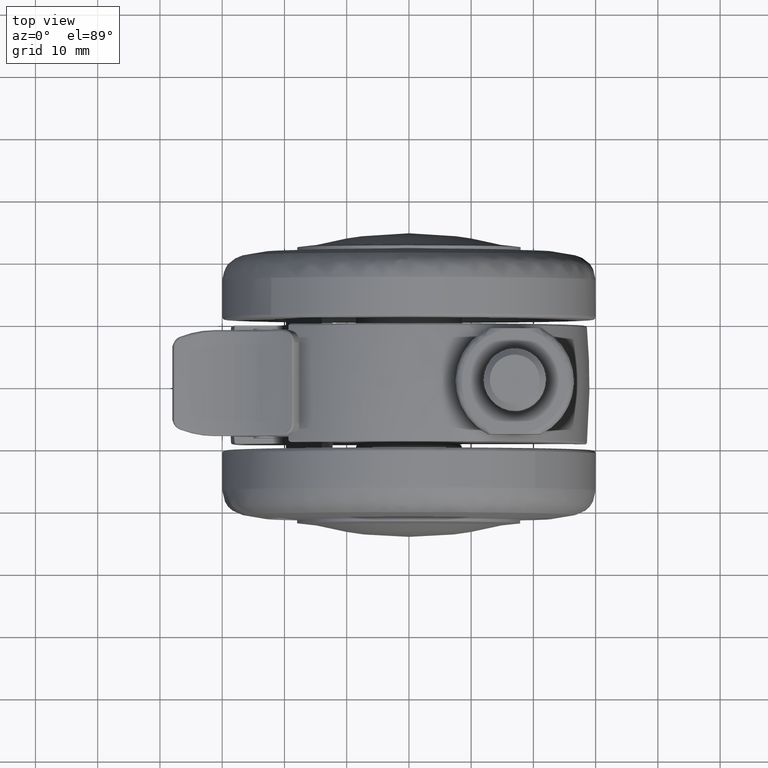
[diagram: clean part render]
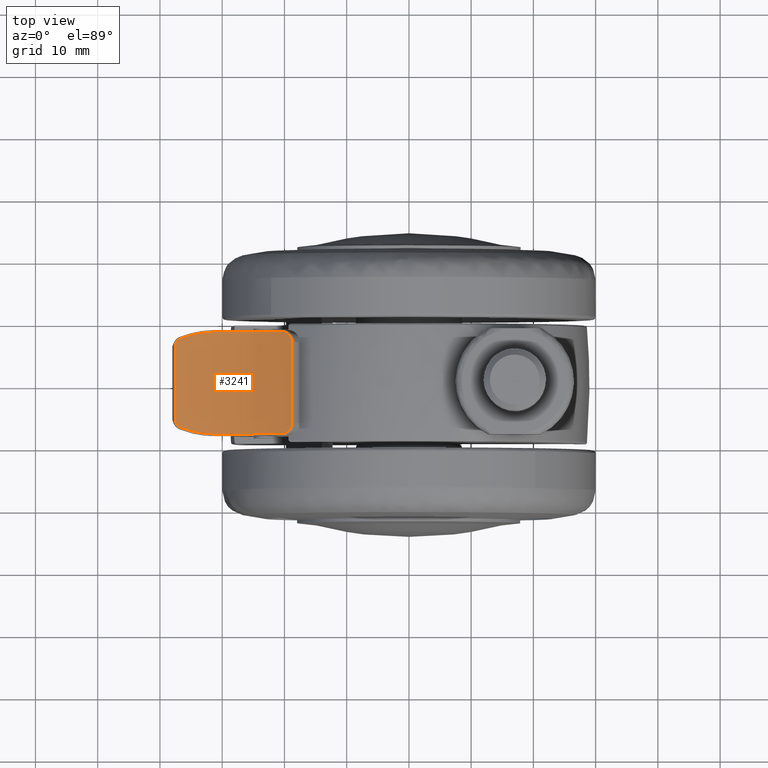
[diagram: same view with one face highlighted and labeled with its STEP entity id]
A machine part, top view. The second image highlights one B-rep face of the part: STEP entity #3241.
In plain terms, the highlighted face is a freeform B-spline surface patch.
Its self-contained STEP definition (entity closure, byte-faithful):
#686=CARTESIAN_POINT('',(-31.251384549450648,-8.200000000000001,20.249364965127199));
#687=VERTEX_POINT('',#686);
#701=CARTESIAN_POINT('',(-36.706941947340951,-7.125777653168290,20.116879827840648));
#702=VERTEX_POINT('',#701);
#703=CARTESIAN_POINT('',(-36.706941947340951,-7.125777653168290,20.116879827840648));
#704=CARTESIAN_POINT('',(-36.272451765847407,-7.303628347132574,20.083378885623070));
#705=CARTESIAN_POINT('',(-35.832562165919377,-7.459020435079164,20.060038654110681));
#706=CARTESIAN_POINT('',(-34.942289948204809,-7.726145642574063,20.035096895187259));
#707=CARTESIAN_POINT('',(-34.491906615159792,-7.837875821063594,20.033491798993769));
#708=CARTESIAN_POINT('',(-33.580654766480912,-8.017698912020776,20.053578417071659));
#709=CARTESIAN_POINT('',(-33.119786893965859,-8.085794519322745,20.075266058808200));
#710=CARTESIAN_POINT('',(-32.536970727306588,-8.142894446742366,20.118072555820671));
#711=CARTESIAN_POINT('',(-32.419968801533408,-8.152915836142963,20.127429304172690));
#712=CARTESIAN_POINT('',(-32.186150454504393,-8.170062508540568,20.147667053298591));
#713=CARTESIAN_POINT('',(-31.835477763664969,-8.191466605216826,20.180322639864801));
#714=CARTESIAN_POINT('',(-31.484974553976961,-8.199999999999998,20.219891899989801));
#715=CARTESIAN_POINT('',(-31.251384549450648,-8.200000000000001,20.249364965127199));
#716=B_SPLINE_CURVE_WITH_KNOTS('',3,(#703,#704,#705,#706,#707,#708,#709,#710,#711,#712,#713,#714,#715),.UNSPECIFIED.,.F.,.U.,(4,2,2,2,2,1,4),(0.0,0.250000000000001,0.500000000000002,0.750000000000003,0.812500000000001,0.875000000000000,1.0),.UNSPECIFIED.);
#717=EDGE_CURVE('',#702,#687,#716,.T.);
#834=CARTESIAN_POINT('',(-37.526363523592252,-5.955633864986680,20.192638327481198));
#835=VERTEX_POINT('',#834);
#877=CARTESIAN_POINT('',(-37.526363523592252,-5.955633864986680,20.192638327481198));
#878=CARTESIAN_POINT('',(-37.526363523592252,-5.987609100872975,20.192638327481198));
#879=CARTESIAN_POINT('',(-37.525091727088601,-6.019501068910721,20.192501078418271));
#880=CARTESIAN_POINT('',(-37.520030364548312,-6.083120167573930,20.191955953170272));
#881=CARTESIAN_POINT('',(-37.516221464833137,-6.114946758881224,20.191546004702449));
#882=CARTESIAN_POINT('',(-37.501161143147449,-6.209201168612514,20.189930405401071));
#883=CARTESIAN_POINT('',(-37.486328165805148,-6.270511728906504,20.188343739808079));
#884=CARTESIAN_POINT('',(-37.447468667678507,-6.390207761938402,20.184239927941270));
#885=CARTESIAN_POINT('',(-37.423440452238552,-6.448592688100487,20.181722386667438));
#886=CARTESIAN_POINT('',(-37.365921327658839,-6.562354291150278,20.175804361325920));
#887=CARTESIAN_POINT('',(-37.332981605949762,-6.616558441358877,20.172461813068900));
#888=CARTESIAN_POINT('',(-37.259967521313790,-6.718712697016926,20.165219192724852));
#889=CARTESIAN_POINT('',(-37.219781256400097,-6.766874677464974,20.161307377393069));
#890=CARTESIAN_POINT('',(-37.132134695161561,-6.857442920842001,20.153010035638282));
#891=CARTESIAN_POINT('',(-37.084259528178670,-6.900105771322431,20.148588608716292));
#892=CARTESIAN_POINT('',(-36.934141109891200,-7.015720299648574,20.135175254693358));
#893=CARTESIAN_POINT('',(-36.824731007791428,-7.077562832592820,20.125961838611179));
#894=CARTESIAN_POINT('',(-36.706941947340951,-7.125777653168290,20.116879827840648));
#895=B_SPLINE_CURVE_WITH_KNOTS('',3,(#877,#878,#879,#880,#881,#882,#883,#884,#885,#886,#887,#888,#889,#890,#891,#892,#893,#894),.UNSPECIFIED.,.F.,.U.,(4,2,2,2,2,2,2,2,4),(0.0,0.062500000000000,0.124999999999999,0.250000000000001,0.375000000000002,0.500000000000004,0.625000000000005,0.750000000000007,1.0),.UNSPECIFIED.);
#896=EDGE_CURVE('',#835,#702,#895,.T.);
#920=CARTESIAN_POINT('',(-20.382020290848800,-8.200000000000001,24.103199446048301));
#921=VERTEX_POINT('',#920);
#935=CARTESIAN_POINT('',(-31.251384549450659,-8.200000000000001,20.249364965127189));
#936=CARTESIAN_POINT('',(-25.395467923015239,-8.200000000000001,20.988231392738754));
#937=CARTESIAN_POINT('',(-20.382020290848800,-8.200000000000001,24.103199446048290));
#945=(BOUNDED_CURVE()B_SPLINE_CURVE(2,(#935,#936,#937),.UNSPECIFIED.,.F.,.U.)CURVE()GEOMETRIC_REPRESENTATION_ITEM()QUASI_UNIFORM_CURVE()RATIONAL_B_SPLINE_CURVE((1.0,0.976929500232778,1.0))REPRESENTATION_ITEM(''));
#946=EDGE_CURVE('',#687,#921,#945,.T.);
#979=CARTESIAN_POINT('',(-37.526363523592202,5.955633864986690,20.192638327481198));
#980=VERTEX_POINT('',#979);
#1002=CARTESIAN_POINT('',(-37.526363523592202,5.955633864986690,20.192638327481198));
#1003=CARTESIAN_POINT('',(-37.526363523592252,-5.955633864986680,20.192638327481198));
#1004=QUASI_UNIFORM_CURVE('',1,(#1002,#1003),.UNSPECIFIED.,.F.,.U.);
#1005=EDGE_CURVE('',#980,#835,#1004,.T.);
#1120=CARTESIAN_POINT('',(-18.845216668850750,-6.500000000000000,25.132645951407898));
#1121=VERTEX_POINT('',#1120);
#1135=CARTESIAN_POINT('',(-20.382020290848800,-8.200000000000001,24.103199446048301));
#1136=CARTESIAN_POINT('',(-20.282028482214670,-8.199999999999999,24.165326611292741));
#1137=CARTESIAN_POINT('',(-20.183118150991529,-8.193244686739616,24.227689995229451));
#1138=CARTESIAN_POINT('',(-20.036806905538519,-8.168279615571942,24.321250021092741));
#1139=CARTESIAN_POINT('',(-19.988374877402538,-8.157524903638832,24.352441370503680));
#1140=CARTESIAN_POINT('',(-19.892235127025621,-8.130600719242301,24.414789200838989));
#1141=CARTESIAN_POINT('',(-19.844702380918950,-8.114453853562280,24.445834184467159));
#1142=CARTESIAN_POINT('',(-19.705796072514151,-8.058364557122408,24.537160355608648));
#1143=CARTESIAN_POINT('',(-19.617306620327160,-8.010625242748002,24.596155815303518));
#1144=CARTESIAN_POINT('',(-19.490993062905151,-7.922428046980665,24.681355287251819));
#1145=CARTESIAN_POINT('',(-19.449856023859219,-7.890117341376162,24.709278000331860));
#1146=CARTESIAN_POINT('',(-19.371562838326000,-7.821241070340577,24.762713676076189));
#1147=CARTESIAN_POINT('',(-19.296794487980218,-7.747838278069295,24.814045050811949));
#1148=CARTESIAN_POINT('',(-19.228941273544208,-7.665469326863456,24.861111188541990));
#1149=CARTESIAN_POINT('',(-19.164578455761021,-7.578530186240501,24.905953427620140));
#1150=CARTESIAN_POINT('',(-19.133985745580080,-7.532486615157449,24.927373105597830));
#1151=CARTESIAN_POINT('',(-19.049256112593142,-7.389998326917445,24.986924436533499));
#1152=CARTESIAN_POINT('',(-19.001778190457919,-7.289071615653703,25.020609164040000));
#1153=CARTESIAN_POINT('',(-18.943689132734921,-7.128916749156466,25.062000893777299));
#1154=CARTESIAN_POINT('',(-18.926462308065009,-7.073782467689407,25.074314418949282));
#1155=CARTESIAN_POINT('',(-18.896921011925919,-6.961778802350572,25.095468555146809));
#1156=CARTESIAN_POINT('',(-18.884668573230108,-6.905257024584552,25.104264216884449));
#1157=CARTESIAN_POINT('',(-18.855209570401911,-6.734179474117826,25.125434353729059));
#1158=CARTESIAN_POINT('',(-18.845216668850750,-6.618128381175865,25.132645951407898));
#1159=CARTESIAN_POINT('',(-18.845216668850750,-6.500000000000000,25.132645951407898));
#1160=B_SPLINE_CURVE_WITH_KNOTS('',3,(#1135,#1136,#1137,#1138,#1139,#1140,#1141,#1142,#1143,#1144,#1145,#1146,#1147,#1148,#1149,#1150,#1151,#1152,#1153,#1154,#1155,#1156,#1157,#1158,#1159),.UNSPECIFIED.,.F.,.U.,(4,2,2,2,2,2,1,2,2,2,2,2,4),(0.0,0.125000000000000,0.187499999999999,0.249999999999998,0.374999999999998,0.437499999999998,0.499999999999998,0.562499999999998,0.624999999999998,0.749999999999997,0.812499999999998,0.874999999999999,1.0),.UNSPECIFIED.);
#1161=EDGE_CURVE('',#921,#1121,#1160,.T.);
#1255=CARTESIAN_POINT('',(-36.706941947340702,7.125777653168400,20.116879827840599));
#1256=VERTEX_POINT('',#1255);
#1300=CARTESIAN_POINT('',(-36.706941947340702,7.125777653168400,20.116879827840599));
#1301=CARTESIAN_POINT('',(-36.765784139148593,7.101691666664961,20.121416797723182));
#1302=CARTESIAN_POINT('',(-36.822750077223851,7.074086090533047,20.126003244201701));
#1303=CARTESIAN_POINT('',(-36.932677098074812,7.011346883730943,20.135181073372401));
#1304=CARTESIAN_POINT('',(-36.985890442371407,6.975984407268606,20.139796198676219));
#1305=CARTESIAN_POINT('',(-37.085756893319797,6.898829539605195,20.148725450509030));
#1306=CARTESIAN_POINT('',(-37.132641800807633,6.856962765180065,20.153057331706201));
#1307=CARTESIAN_POINT('',(-37.198268454670192,6.789082348879805,20.159271159962390));
#1308=CARTESIAN_POINT('',(-37.219358337428453,6.765606438560199,20.161294975430831));
#1309=CARTESIAN_POINT('',(-37.259913400404272,6.716897418660349,20.165231218303749));
#1310=CARTESIAN_POINT('',(-37.279412973103952,6.691600362882471,20.167147213974118));
#1311=CARTESIAN_POINT('',(-37.334505565786223,6.614228195614378,20.172614812086739));
#1312=CARTESIAN_POINT('',(-37.367026138980933,6.560335876039870,20.175917323427470));
#1313=CARTESIAN_POINT('',(-37.409518978402829,6.476040297791238,20.180290402288531));
#1314=CARTESIAN_POINT('',(-37.422631230333188,6.447363384662443,20.181651099818080));
#1315=CARTESIAN_POINT('',(-37.446703646151228,6.388825823899992,20.184164088354951));
#1316=CARTESIAN_POINT('',(-37.457703672054812,6.358833773209543,20.185320605025140));
#1317=CARTESIAN_POINT('',(-37.506546965199078,6.207601745746847,20.190479825221050));
#1318=CARTESIAN_POINT('',(-37.526363523592202,6.083316604691742,20.192638327481209));
#1319=CARTESIAN_POINT('',(-37.526363523592202,5.955633864986690,20.192638327481198));
#1320=B_SPLINE_CURVE_WITH_KNOTS('',3,(#1300,#1301,#1302,#1303,#1304,#1305,#1306,#1307,#1308,#1309,#1310,#1311,#1312,#1313,#1314,#1315,#1316,#1317,#1318,#1319),.UNSPECIFIED.,.F.,.U.,(4,2,2,2,2,2,2,2,2,4),(0.0,0.125000000000006,0.250000000000011,0.375000000000017,0.437500000000020,0.500000000000024,0.625000000000022,0.687500000000020,0.750000000000019,1.0),.UNSPECIFIED.);
#1321=EDGE_CURVE('',#1256,#980,#1320,.T.);
#1342=CARTESIAN_POINT('',(-18.845216668850750,6.500000000000000,25.132645951407898));
#1343=VERTEX_POINT('',#1342);
#1357=CARTESIAN_POINT('',(-18.845216668850750,-6.500000000000000,25.132645951407898));
#1358=CARTESIAN_POINT('',(-18.845216668850750,6.500000000000000,25.132645951407898));
#1359=QUASI_UNIFORM_CURVE('',1,(#1357,#1358),.UNSPECIFIED.,.F.,.U.);
#1360=EDGE_CURVE('',#1121,#1343,#1359,.T.);
#1429=CARTESIAN_POINT('',(-31.251384549450648,8.200000000000001,20.249364965127199));
#1430=VERTEX_POINT('',#1429);
#1464=CARTESIAN_POINT('',(-31.251384549450648,8.200000000000001,20.249364965127199));
#1465=CARTESIAN_POINT('',(-31.718578654754829,8.199999999999998,20.190417056267130));
#1466=CARTESIAN_POINT('',(-32.182875716741393,8.177283376126816,20.144240240838680));
#1467=CARTESIAN_POINT('',(-33.105777213527070,8.087463729221968,20.076137975864899));
#1468=CARTESIAN_POINT('',(-33.564381425472710,8.020358437166902,20.054215259668268));
#1469=CARTESIAN_POINT('',(-34.475822192033696,7.841582408018232,20.033577916683701));
#1470=CARTESIAN_POINT('',(-34.928659357989879,7.729914963143161,20.034865635618338));
#1471=CARTESIAN_POINT('',(-35.490941557915917,7.561599513557884,20.050432051702060));
#1472=CARTESIAN_POINT('',(-35.603301277712653,7.526464692891489,20.054248086730869));
#1473=CARTESIAN_POINT('',(-35.826832586387681,7.453550603058061,20.063227811922449));
#1474=CARTESIAN_POINT('',(-36.160564690998307,7.340153924335971,20.078721572889439));
#1475=CARTESIAN_POINT('',(-36.489629376495529,7.214730621907815,20.100124153744559));
#1476=CARTESIAN_POINT('',(-36.706941947340702,7.125777653168400,20.116879827840599));
#1477=B_SPLINE_CURVE_WITH_KNOTS('',3,(#1464,#1465,#1466,#1467,#1468,#1469,#1470,#1471,#1472,#1473,#1474,#1475,#1476),.UNSPECIFIED.,.F.,.U.,(4,2,2,2,2,1,4),(0.0,0.250000000000003,0.500000000000006,0.750000000000008,0.812500000000006,0.875000000000004,1.0),.UNSPECIFIED.);
#1478=EDGE_CURVE('',#1430,#1256,#1477,.T.);
#1583=CARTESIAN_POINT('',(-20.382020290848800,8.200000000000001,24.103199446048301));
#1584=VERTEX_POINT('',#1583);
#1598=CARTESIAN_POINT('',(-18.845216668850750,6.500000000000000,25.132645951407898));
#1599=CARTESIAN_POINT('',(-18.845216668850760,6.559157911188476,25.132645951407909));
#1600=CARTESIAN_POINT('',(-18.847745039915399,6.618035667315585,25.130823142359599));
#1601=CARTESIAN_POINT('',(-18.857804991908669,6.735237214857429,25.123578379358481));
#1602=CARTESIAN_POINT('',(-18.865388062231361,6.793821276992728,25.118119411726660));
#1603=CARTESIAN_POINT('',(-18.895409198321470,6.966521862555171,25.096546442861921));
#1604=CARTESIAN_POINT('',(-18.924887146762220,7.077435608947402,25.075396544506411));
#1605=CARTESIAN_POINT('',(-18.983171196536659,7.237587746745148,25.033868633499960));
#1606=CARTESIAN_POINT('',(-19.005029167251831,7.290064562503432,25.018333033278989));
#1607=CARTESIAN_POINT('',(-19.053417206925928,7.392251315788165,24.984072671823970));
#1608=CARTESIAN_POINT('',(-19.079631418313181,7.441328674060985,24.965571674908940));
#1609=CARTESIAN_POINT('',(-19.164170968125099,7.582722577339245,24.906165768984469));
#1610=CARTESIAN_POINT('',(-19.228333361670629,7.669258637802204,24.861394228062480));
#1611=CARTESIAN_POINT('',(-19.336766738365871,7.787197690919522,24.786599040167239));
#1612=CARTESIAN_POINT('',(-19.374799888875639,7.824293408180704,24.760496249460701));
#1613=CARTESIAN_POINT('',(-19.453195818017711,7.892832861370814,24.707007392697630));
#1614=CARTESIAN_POINT('',(-19.493750748858901,7.924490832054017,24.679488481738499));
#1615=CARTESIAN_POINT('',(-19.577539064535760,7.982712067480663,24.622986486163679));
#1616=CARTESIAN_POINT('',(-19.620772911432081,8.009274328891232,24.594003016248720));
#1617=CARTESIAN_POINT('',(-19.709943537741911,8.057314101076292,24.534618793594600));
#1618=CARTESIAN_POINT('',(-19.756102939375872,8.078850784901213,24.504073598115831));
#1619=CARTESIAN_POINT('',(-19.895461321323278,8.134580238799449,24.412486961213610));
#1620=CARTESIAN_POINT('',(-19.990360250643249,8.160451438154970,24.350942127875928));
#1621=CARTESIAN_POINT('',(-20.183695482249391,8.193244719605154,24.227329565308050));
#1622=CARTESIAN_POINT('',(-20.282156432604239,8.199999999999996,24.165247112830770));
#1623=CARTESIAN_POINT('',(-20.382020290848800,8.200000000000001,24.103199446048301));
#1624=B_SPLINE_CURVE_WITH_KNOTS('',3,(#1598,#1599,#1600,#1601,#1602,#1603,#1604,#1605,#1606,#1607,#1608,#1609,#1610,#1611,#1612,#1613,#1614,#1615,#1616,#1617,#1618,#1619,#1620,#1621,#1622,#1623),.UNSPECIFIED.,.F.,.U.,(4,2,2,2,2,2,2,2,2,2,2,2,4),(0.0,0.062500000000000,0.125000000000000,0.250000000000001,0.312500000000000,0.374999999999999,0.499999999999996,0.562499999999996,0.624999999999995,0.687499999999995,0.749999999999995,0.874999999999998,1.0),.UNSPECIFIED.);
#1625=EDGE_CURVE('',#1343,#1584,#1624,.T.);
#1680=CARTESIAN_POINT('',(-20.382020290848800,8.200000000000001,24.103199446048290));
#1681=CARTESIAN_POINT('',(-25.395467923015239,8.200000000000001,20.988231392738754));
#1682=CARTESIAN_POINT('',(-31.251384549450648,8.200000000000001,20.249364965127189));
#1690=(BOUNDED_CURVE()B_SPLINE_CURVE(2,(#1680,#1681,#1682),.UNSPECIFIED.,.F.,.U.)CURVE()GEOMETRIC_REPRESENTATION_ITEM()QUASI_UNIFORM_CURVE()RATIONAL_B_SPLINE_CURVE((1.0,0.976929500232778,1.0))REPRESENTATION_ITEM(''));
#1691=EDGE_CURVE('',#1584,#1430,#1690,.T.);
#3215=CARTESIAN_POINT('',(-18.252879189656870,8.610000000000003,25.571947641290151));
#3216=CARTESIAN_POINT('',(-18.252879189656870,-8.620250000000002,25.571947641290151));
#3217=CARTESIAN_POINT('',(-27.265235073263394,8.610000000000003,18.695269592696167));
#3218=CARTESIAN_POINT('',(-27.265235073263394,-8.620250000000002,18.695269592696167));
#3219=CARTESIAN_POINT('',(-38.485425548181794,8.610000000000001,20.313473925696634));
#3220=CARTESIAN_POINT('',(-38.485425548181794,-8.620250000000000,20.313473925696634));
#3228=(BOUNDED_SURFACE()B_SPLINE_SURFACE(1,2,((#3215,#3217,#3219),(#3216,#3218,#3220)),.UNSPECIFIED.,.F.,.F.,.U.)B_SPLINE_SURFACE_WITH_KNOTS((2,2),(3,3),(0.0,17.230250000000009),(0.0,21.752679058878080),.UNSPECIFIED.)GEOMETRIC_REPRESENTATION_ITEM()RATIONAL_B_SPLINE_SURFACE(((1.0,0.918067543471924,0.991428892212614),(1.0,0.918067543471924,0.991428892212614)))REPRESENTATION_ITEM('')SURFACE());
#3229=ORIENTED_EDGE('',*,*,#896,.T.);
#3230=ORIENTED_EDGE('',*,*,#717,.T.);
#3231=ORIENTED_EDGE('',*,*,#946,.T.);
#3232=ORIENTED_EDGE('',*,*,#1161,.T.);
#3233=ORIENTED_EDGE('',*,*,#1360,.T.);
#3234=ORIENTED_EDGE('',*,*,#1625,.T.);
#3235=ORIENTED_EDGE('',*,*,#1691,.T.);
#3236=ORIENTED_EDGE('',*,*,#1478,.T.);
#3237=ORIENTED_EDGE('',*,*,#1321,.T.);
#3238=ORIENTED_EDGE('',*,*,#1005,.T.);
#3239=EDGE_LOOP('',(#3229,#3230,#3231,#3232,#3233,#3234,#3235,#3236,#3237,#3238));
#3240=FACE_OUTER_BOUND('',#3239,.T.);
#3241=ADVANCED_FACE('',(#3240),#3228,.F.);